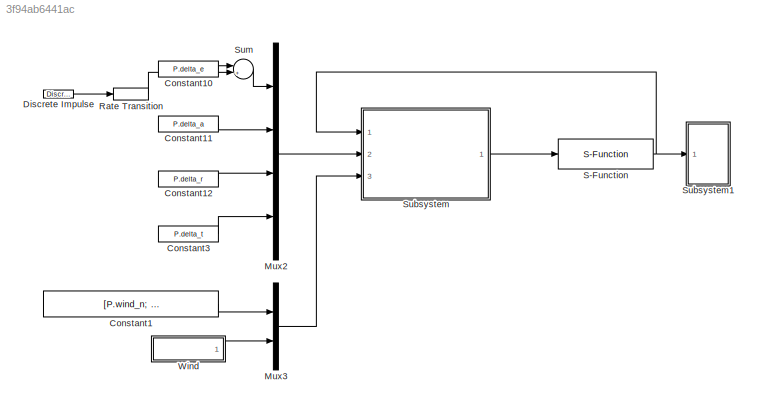
MODEL slx_3f94ab6441ac
KIND model
CONFIG AbsTol = auto
CONFIG EnableMultiTasking = on
CONFIG FixedStep = .005
CONFIG InitFcn = param
CONFIG MaxStep = auto
CONFIG MinStep = auto
CONFIG RelTol = 1e-3
CONFIG SampleTimeConstraint = Unconstrained
CONFIG Solver = FixedStepAuto
CONFIG SolverName = FixedStepAuto
CONFIG StartTime = 0.0
CONFIG StopTime = 10000
BLOCK [Constant] Constant1
  Value = [P.wind_n; P.wind_e; P.wind_d]
BLOCK [Constant] Constant10
  Value = P.delta_e
BLOCK [Constant] Constant11
  Value = P.delta_a
BLOCK [Constant] Constant12
  Value = P.delta_r
BLOCK [Constant] Constant3
  Value = P.delta_t
BLOCK [Reference] Discrete Impulse  REF=dspsrcs4/Discrete 
Impulse
  Ports = [0, 1]
  SourceBlock = dspsrcs4/Discrete \nImpulse
  SourceType = Discrete Impulse
BLOCK [Mux] Mux2
  DisplayOption = bar
  Ports = [4, 1]
BLOCK [Mux] Mux3
  DisplayOption = bar
  Inputs = 2
  Ports = [2, 1]
BLOCK [RateTransition] Rate Transition
BLOCK [S-Function] S-Function
  EnableBusSupport = off
  FunctionName = mav_dynamics
  Parameters = P
  Ports = [1, 1]
  SFcnIsStateOwnerBlock = off
  SFunctionDeploymentMode = off
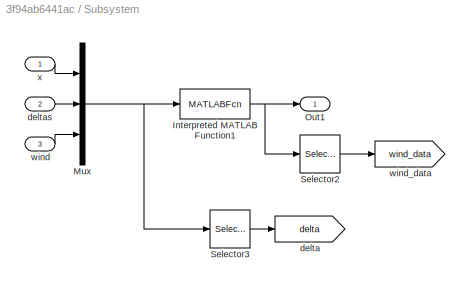
BLOCK [SubSystem] Subsystem
  Ports = [3, 1]
  RequestExecContextInheritance = off
  Variant = off
BLOCK [MATLABFcn] Subsystem/Interpreted MATLAB Function1
  MATLABFcn = forces_moments(u(1:12),u(13:16),u(17:22),P)
  Ports = [1, 1]
BLOCK [Mux] Subsystem/Mux
  DisplayOption = bar
  Inputs = 3
  Ports = [3, 1]
BLOCK [Outport] Subsystem/Out1
  IconDisplay = Port number
BLOCK [Selector] Subsystem/Selector2
  IndexOptions = Index vector (dialog)
  Indices = [7 8 9 10 11 12]
  InputPortWidth = 12
  OutputSizes = 1
  Ports = [1, 1]
BLOCK [Selector] Subsystem/Selector3
  IndexOptions = Index vector (dialog)
  Indices = [13 14 15 16]
  InputPortWidth = 22
  OutputSizes = 1
  Ports = [1, 1]
BLOCK [Goto] Subsystem/delta
  GotoTag = delta
  TagVisibility = global
BLOCK [Inport] Subsystem/deltas
  IconDisplay = Port number
  Port = 2
BLOCK [Inport] Subsystem/wind
  IconDisplay = Port number
  Port = 3
BLOCK [Goto] Subsystem/wind_data
  GotoTag = wind_data
  TagVisibility = global
BLOCK [Inport] Subsystem/x 
  IconDisplay = Port number
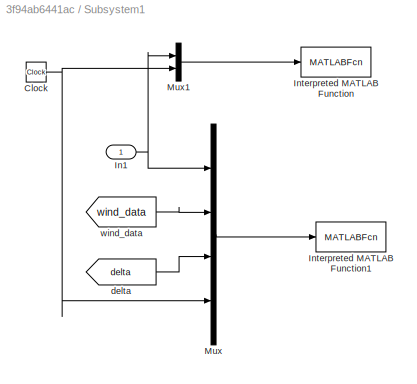
BLOCK [SubSystem] Subsystem1
  Ports = [1]
  RequestExecContextInheritance = off
  Variant = off
BLOCK [Clock] Subsystem1/Clock
BLOCK [Inport] Subsystem1/In1
  IconDisplay = Port number
BLOCK [MATLABFcn] Subsystem1/Interpreted MATLAB Function
  MATLABFcn = drawAircraft(u)
  OutputDimensions = 0
  Ports = [1]
BLOCK [MATLABFcn] Subsystem1/Interpreted MATLAB Function1
  MATLABFcn = plotmavstatevariables(u)
  OutputDimensions = 0
  Ports = [1]
BLOCK [Mux] Subsystem1/Mux
  DisplayOption = bar
  Ports = [4, 1]
BLOCK [Mux] Subsystem1/Mux1
  DisplayOption = bar
  Inputs = 2
  Ports = [2, 1]
BLOCK [From] Subsystem1/delta
  GotoTag = delta
  TagVisibility = global
BLOCK [From] Subsystem1/wind_data 
  GotoTag = wind_data
  IconDisplay = Tag and signal name
  TagVisibility = global
BLOCK [Sum] Sum
  IconShape = round
  InputSameDT = off
  Inputs = |++
  OutDataTypeStr = Inherit: Inherit via internal rule
  Ports = [2, 1]
  SaturateOnIntegerOverflow = off
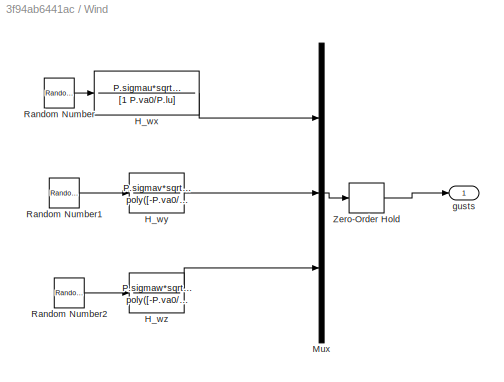
BLOCK [SubSystem] Wind
  Ports = [0, 1]
  RequestExecContextInheritance = off
  Variant = off
BLOCK [TransferFcn] Wind/H_wx
  Denominator = [1 P.va0/P.lu]
  Numerator = P.sigmau*sqrt(2*P.va0/P.lu)
BLOCK [TransferFcn] Wind/H_wy
  Denominator = poly([-P.va0/P.lv, -P.va0/P.lv])
  Numerator = P.sigmav*sqrt(3*P.va0/P.lv)*[0, 1, P.va0/sqrt(3)/P.lv]
BLOCK [TransferFcn] Wind/H_wz
  Denominator = poly([-P.va0/P.lw, -P.va0/P.lw])
  Numerator = P.sigmaw*sqrt(3*P.va0/P.lw)*[0, 1, P.va0/sqrt(3)/P.lw]
BLOCK [Mux] Wind/Mux
  DisplayOption = bar
  Inputs = 3
  Ports = [3, 1]
BLOCK [RandomNumber] Wind/Random Number
  SampleTime = 0
BLOCK [RandomNumber] Wind/Random Number1
  SampleTime = 0
BLOCK [RandomNumber] Wind/Random Number2
  SampleTime = 0
BLOCK [ZeroOrderHold] Wind/Zero-Order Hold
  SampleTime = P.Ts
BLOCK [Outport] Wind/gusts
  IconDisplay = Port number
LINE Constant10:1 -> Sum:1
LINE Constant11:1 -> Mux2:2
LINE Constant12:1 -> Mux2:3
LINE Constant1:1 -> Mux3:1
LINE Constant3:1 -> Mux2:4
LINE Discrete Impulse:1 -> Rate Transition:1
LINE Mux2:1 -> Subsystem:2
LINE Mux3:1 -> Subsystem:3
LINE Rate Transition:1 -> Sum:2
NET S-Function:1 -> Subsystem1:1, Subsystem:1
NET Subsystem/Interpreted MATLAB Function1:1 -> Subsystem/Out1:1, Subsystem/Selector2:1
NET Subsystem/Mux:1 -> Subsystem/Interpreted MATLAB Function1:1, Subsystem/Selector3:1
LINE Subsystem/Selector2:1 -> Subsystem/wind_data:1
LINE Subsystem/Selector3:1 -> Subsystem/delta:1
LINE Subsystem/deltas:1 -> Subsystem/Mux:2
LINE Subsystem/wind:1 -> Subsystem/Mux:3
LINE Subsystem/x :1 -> Subsystem/Mux:1
NET Subsystem1/Clock:1 -> Subsystem1/Mux1:2, Subsystem1/Mux:4
NET Subsystem1/In1:1 -> Subsystem1/Mux1:1, Subsystem1/Mux:1
LINE Subsystem1/Mux1:1 -> Subsystem1/Interpreted MATLAB Function:1
LINE Subsystem1/Mux:1 -> Subsystem1/Interpreted MATLAB Function1:1
LINE Subsystem1/delta:1 -> Subsystem1/Mux:3
LINE Subsystem1/wind_data :1 -> Subsystem1/Mux:2
LINE Subsystem:1 -> S-Function:1
LINE Sum:1 -> Mux2:1
LINE Wind/H_wx:1 -> Wind/Mux:1
LINE Wind/H_wy:1 -> Wind/Mux:2
LINE Wind/H_wz:1 -> Wind/Mux:3
LINE Wind/Mux:1 -> Wind/Zero-Order Hold:1
LINE Wind/Random Number1:1 -> Wind/H_wy:1
LINE Wind/Random Number2:1 -> Wind/H_wz:1
LINE Wind/Random Number:1 -> Wind/H_wx:1
LINE Wind/Zero-Order Hold:1 -> Wind/gusts:1
LINE Wind:1 -> Mux3:2
note: NET lines group one-source signal fan-out (src -> all destinations, sorted); 1:1 wires keep LINE
